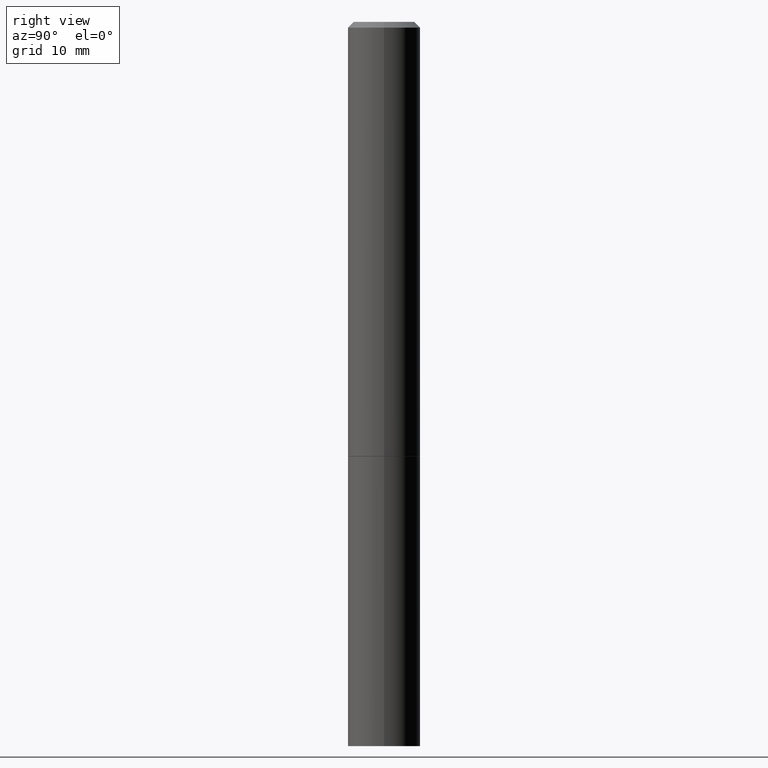
[diagram: clean part render]
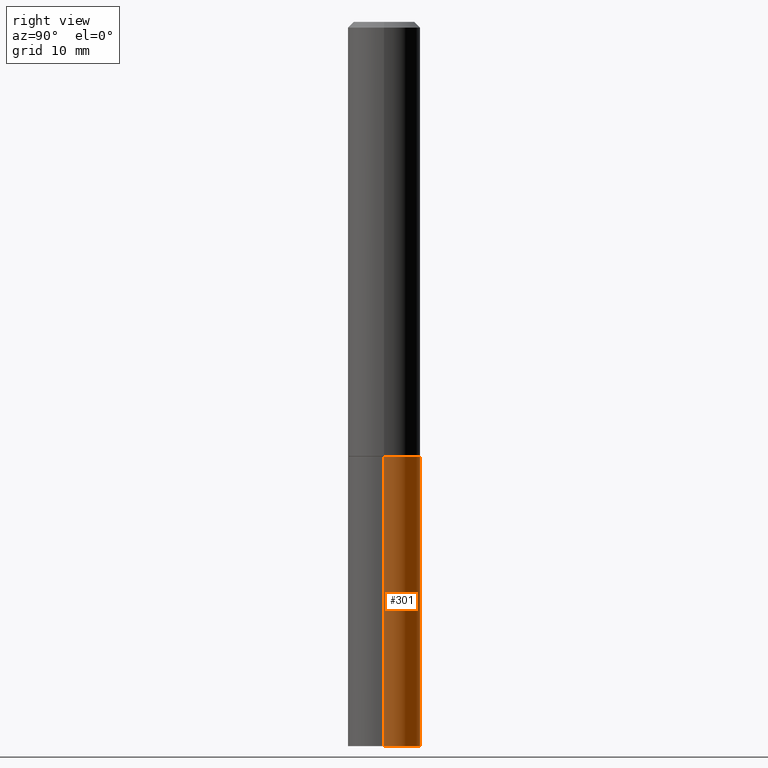
[diagram: same view with one face highlighted and labeled with its STEP entity id]
A machine part, right view. The second image highlights one B-rep face of the part: STEP entity #301.
In plain terms, the highlighted cylindrical surface (edge-blend (fillet) strip) has radius 3.175 mm, axis along (-0, 0, 1).
Its self-contained STEP definition (entity closure, byte-faithful):
#19 = CARTESIAN_POINT ( 'NONE',  ( -0.1250000000000000000, -6.094784257986165933E-15, -2.500000000000000000 ) ) ;
#24 = DIRECTION ( 'NONE',  ( 1.000000000000000000, -6.982962677686266711E-15, 4.876176775795935793E-29 ) ) ;
#32 = CARTESIAN_POINT ( 'NONE',  ( -0.1250000000000000000, -6.094784257986165933E-15, -1.500000000000000222 ) ) ;
#37 = DIRECTION ( 'NONE',  ( 1.000000000000000000, -6.982962677686270655E-15, 0.000000000000000000 ) ) ;
#49 = VECTOR ( 'NONE', #134, 39.37007874015748143 ) ;
#55 = ORIENTED_EDGE ( 'NONE', *, *, #216, .T. ) ;
#67 = AXIS2_PLACEMENT_3D ( 'NONE', #181, #332, #37 ) ;
#82 = LINE ( 'NONE', #251, #221 ) ;
#89 = DIRECTION ( 'NONE',  ( 1.000000000000000000, -6.982962677686262766E-15, 0.000000000000000000 ) ) ;
#103 = EDGE_CURVE ( 'NONE', #217, #191, #199, .T. ) ;
#104 = VERTEX_POINT ( 'NONE', #366 ) ;
#118 = CARTESIAN_POINT ( 'NONE',  ( 3.668203209277704895E-29, -5.237222008264718177E-15, -1.500000000000000222 ) ) ;
#125 = CYLINDRICAL_SURFACE ( 'NONE', #280, 0.1250000000000000000 ) ;
#134 = DIRECTION ( 'NONE',  ( -2.445468806185136877E-29, 3.491481338843145188E-15, 1.000000000000000000 ) ) ;
#155 = EDGE_CURVE ( 'NONE', #104, #191, #349, .T. ) ;
#163 = VERTEX_POINT ( 'NONE', #300 ) ;
#169 = ORIENTED_EDGE ( 'NONE', *, *, #306, .F. ) ;
#181 = CARTESIAN_POINT ( 'NONE',  ( 6.113672015462842613E-29, -8.728703347107864943E-15, -2.500000000000000000 ) ) ;
#191 = VERTEX_POINT ( 'NONE', #32 ) ;
#196 = ORIENTED_EDGE ( 'NONE', *, *, #155, .F. ) ;
#199 = LINE ( 'NONE', #296, #49 ) ;
#203 = FACE_OUTER_BOUND ( 'NONE', #339, .T. ) ;
#216 = EDGE_CURVE ( 'NONE', #163, #217, #320, .T. ) ;
#217 = VERTEX_POINT ( 'NONE', #19 ) ;
#221 = VECTOR ( 'NONE', #281, 39.37007874015748143 ) ;
#224 = ORIENTED_EDGE ( 'NONE', *, *, #103, .T. ) ;
#236 = DIRECTION ( 'NONE',  ( -2.445468806185136597E-29, 3.491481338843145583E-15, 1.000000000000000000 ) ) ;
#251 = CARTESIAN_POINT ( 'NONE',  ( 0.1250000000000000000, -8.728703347107833388E-16, 6.095220969744919741E-30 ) ) ;
#268 = DIRECTION ( 'NONE',  ( -2.445468806185136597E-29, 3.491481338843145583E-15, 1.000000000000000000 ) ) ;
#280 = AXIS2_PLACEMENT_3D ( 'NONE', #356, #268, #24 ) ;
#281 = DIRECTION ( 'NONE',  ( -2.445468806185136877E-29, 3.491481338843145188E-15, 1.000000000000000000 ) ) ;
#284 = AXIS2_PLACEMENT_3D ( 'NONE', #118, #236, #89 ) ;
#296 = CARTESIAN_POINT ( 'NONE',  ( -0.1250000000000000000, 8.881784197001252323E-16, -6.148668862818632227E-30 ) ) ;
#300 = CARTESIAN_POINT ( 'NONE',  ( 0.1250000000000000000, -9.601573681818648281E-15, -2.500000000000000000 ) ) ;
#301 = ADVANCED_FACE ( 'NONE', ( #203 ), #125, .T. ) ;
#306 = EDGE_CURVE ( 'NONE', #163, #104, #82, .T. ) ;
#320 = CIRCLE ( 'NONE', #67, 0.1250000000000000000 ) ;
#332 = DIRECTION ( 'NONE',  ( -2.445468806185136597E-29, 3.491481338843145583E-15, 1.000000000000000000 ) ) ;
#339 = EDGE_LOOP ( 'NONE', ( #55, #224, #196, #169 ) ) ;
#349 = CIRCLE ( 'NONE', #284, 0.1250000000000000000 ) ;
#356 = CARTESIAN_POINT ( 'NONE',  ( 0.000000000000000000, 0.000000000000000000, 0.000000000000000000 ) ) ;
#366 = CARTESIAN_POINT ( 'NONE',  ( 0.1250000000000000000, -6.110092342975501516E-15, -1.500000000000000222 ) ) ;